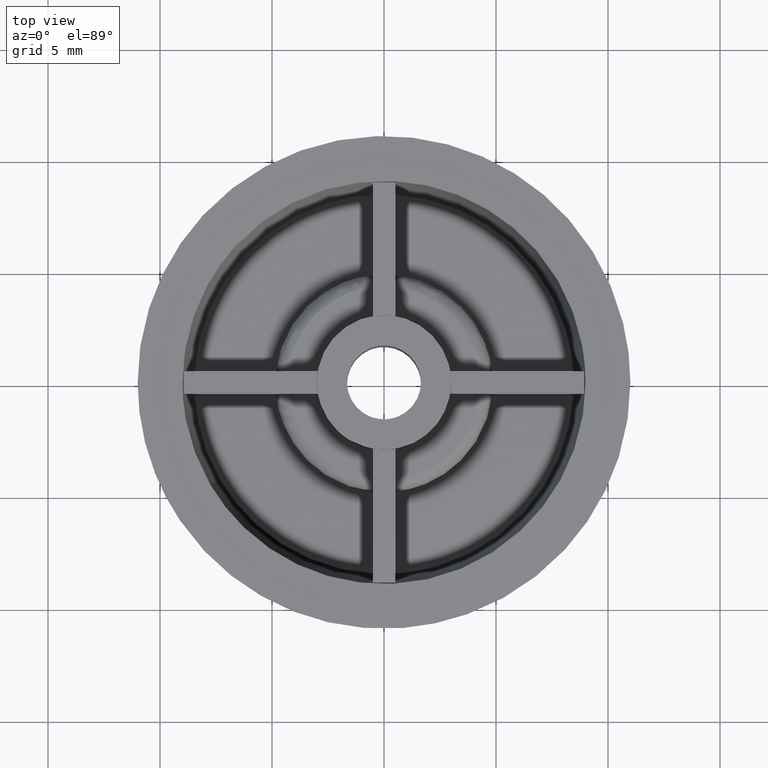
[diagram: clean part render]
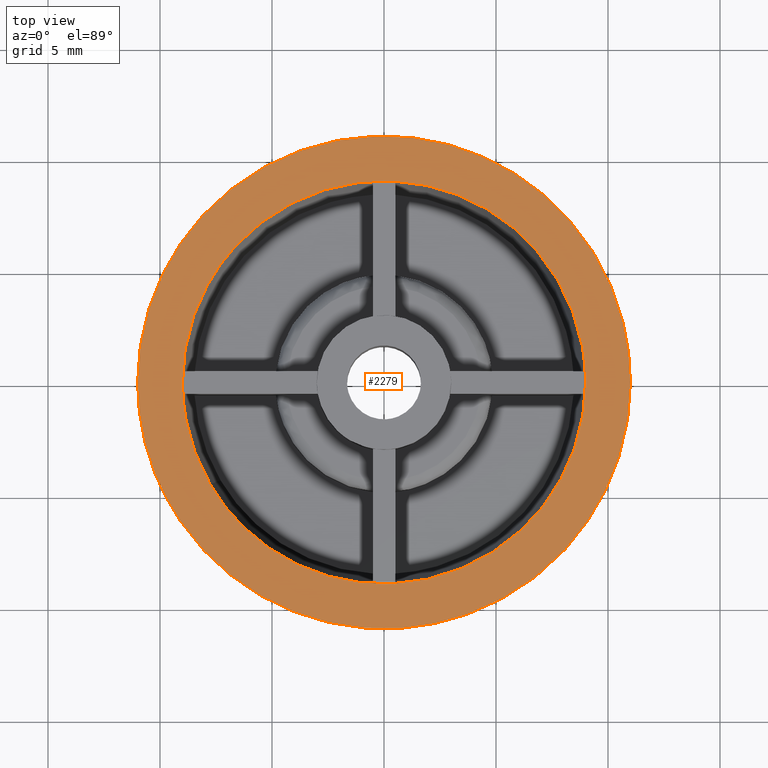
[diagram: same view with one face highlighted and labeled with its STEP entity id]
A machine part, top view. The second image highlights one B-rep face of the part: STEP entity #2279.
In plain terms, the highlighted face is a freeform B-spline surface patch.
Its self-contained STEP definition (entity closure, byte-faithful):
#616=CARTESIAN_POINT('',(0.863043641868048,-10.966090940691020,9.999998009191124));
#617=VERTEX_POINT('',#616);
#618=CARTESIAN_POINT('',(-10.228509833301359,-4.046922405307715,9.999997822664170));
#619=VERTEX_POINT('',#618);
#620=CARTESIAN_POINT('',(0.863043641868048,-10.966090940691020,9.999998009191124));
#621=CARTESIAN_POINT('',(0.432187954316150,-10.999999770209962,9.999998004231291));
#622=CARTESIAN_POINT('',(-4.357194E-009,-10.999999774115951,9.999997998999252));
#623=CARTESIAN_POINT('',(-7.477516348065020,-10.999999841695422,9.999997908476914));
#624=CARTESIAN_POINT('',(-10.228509833301361,-4.046922405307715,9.999997822664168));
#632=(BOUNDED_CURVE()B_SPLINE_CURVE(2,(#620,#621,#622,#623,#624),.UNSPECIFIED.,.F.,.U.)B_SPLINE_CURVE_WITH_KNOTS((3,2,3),(0.736331400565925,0.750000000000000,0.937532606477700),.UNSPECIFIED.)CURVE()GEOMETRIC_REPRESENTATION_ITEM()RATIONAL_B_SPLINE_CURVE((0.969723564724787,0.983986239660329,1.0,0.780291885025080,0.890203253774552))REPRESENTATION_ITEM(''));
#633=EDGE_CURVE('',#617,#619,#632,.T.);
#693=CARTESIAN_POINT('',(-11.0,0.0,10.0));
#694=VERTEX_POINT('',#693);
#695=CARTESIAN_POINT('',(-10.228509833301361,-4.046922405307715,9.999997822664168));
#696=CARTESIAN_POINT('',(-10.999999880903879,-2.096998156951003,9.999998911332085));
#697=CARTESIAN_POINT('',(-11.0,0.0,10.0));
#705=(BOUNDED_CURVE()B_SPLINE_CURVE(2,(#695,#696,#697),.UNSPECIFIED.,.F.,.U.)B_SPLINE_CURVE_WITH_KNOTS((3,3),(0.937532606477700,1.0),.UNSPECIFIED.)CURVE()GEOMETRIC_REPRESENTATION_ITEM()RATIONAL_B_SPLINE_CURVE((0.890203253774552,0.926814896161468,1.0))REPRESENTATION_ITEM(''));
#706=EDGE_CURVE('',#619,#694,#705,.T.);
#708=CARTESIAN_POINT('',(11.0,0.0,10.0));
#709=VERTEX_POINT('',#708);
#710=CARTESIAN_POINT('',(-11.0,0.0,10.0));
#711=CARTESIAN_POINT('',(-11.0,11.0,10.000000000000002));
#712=CARTESIAN_POINT('',(0.0,11.0,10.0));
#713=CARTESIAN_POINT('',(11.0,11.0,10.000000000000002));
#714=CARTESIAN_POINT('',(11.0,0.0,10.0));
#722=(BOUNDED_CURVE()B_SPLINE_CURVE(2,(#710,#711,#712,#713,#714),.UNSPECIFIED.,.F.,.U.)B_SPLINE_CURVE_WITH_KNOTS((3,2,3),(0.0,0.250000000000000,0.500000000000000),.UNSPECIFIED.)CURVE()GEOMETRIC_REPRESENTATION_ITEM()RATIONAL_B_SPLINE_CURVE((1.0,0.707106781186548,1.0,0.707106781186548,1.0))REPRESENTATION_ITEM(''));
#723=EDGE_CURVE('',#694,#709,#722,.T.);
#725=CARTESIAN_POINT('',(11.0,0.0,10.0));
#726=CARTESIAN_POINT('',(10.999999990811927,-10.168301237506476,9.999999004595562));
#727=CARTESIAN_POINT('',(0.863043641868048,-10.966090940691020,9.999998009191124));
#735=(BOUNDED_CURVE()B_SPLINE_CURVE(2,(#725,#726,#727),.UNSPECIFIED.,.F.,.U.)B_SPLINE_CURVE_WITH_KNOTS((3,3),(0.500000000000000,0.736331400565925),.UNSPECIFIED.)CURVE()GEOMETRIC_REPRESENTATION_ITEM()RATIONAL_B_SPLINE_CURVE((1.0,0.723120541526219,0.969723564724787))REPRESENTATION_ITEM(''));
#736=EDGE_CURVE('',#709,#617,#735,.T.);
#1189=CARTESIAN_POINT('',(-7.761535389874816,-4.556156787368412,9.999998243034913));
#1190=VERTEX_POINT('',#1189);
#1196=CARTESIAN_POINT('',(9.0,0.0,10.0));
#1197=VERTEX_POINT('',#1196);
#1198=CARTESIAN_POINT('',(9.0,0.0,10.0));
#1199=CARTESIAN_POINT('',(9.000000024227292,-8.999999985778157,9.999999761208972));
#1200=CARTESIAN_POINT('',(0.000000113356492,-8.999999933457758,9.999998882726429));
#1201=CARTESIAN_POINT('',(-5.152921911512918,-8.999999903501877,9.999998379753977));
#1202=CARTESIAN_POINT('',(-7.761535389874817,-4.556156787368412,9.999998243034913));
#1210=(BOUNDED_CURVE()B_SPLINE_CURVE(2,(#1198,#1199,#1200,#1201,#1202),.UNSPECIFIED.,.F.,.U.)B_SPLINE_CURVE_WITH_KNOTS((3,2,3),(0.500000000000000,0.750000000000000,0.913621874628975),.UNSPECIFIED.)CURVE()GEOMETRIC_REPRESENTATION_ITEM()RATIONAL_B_SPLINE_CURVE((1.0,0.707106781186547,1.0,0.808305049886514,0.867533996528839))REPRESENTATION_ITEM(''));
#1211=EDGE_CURVE('',#1197,#1190,#1210,.T.);
#1213=CARTESIAN_POINT('',(-6.635496134423553,6.080311308922816,9.999997432701306));
#1214=VERTEX_POINT('',#1213);
#1215=CARTESIAN_POINT('',(-6.635496134423553,6.080311308922816,9.999997432701306));
#1216=CARTESIAN_POINT('',(-3.960094862214901,8.999999813405680,9.999997652347489));
#1217=CARTESIAN_POINT('',(0.000000154640398,8.999999858298212,9.999998217166763));
#1218=CARTESIAN_POINT('',(9.000000043298496,8.999999960324249,9.999999500816109));
#1219=CARTESIAN_POINT('',(9.0,0.0,10.0));
#1227=(BOUNDED_CURVE()B_SPLINE_CURVE(2,(#1215,#1216,#1217,#1218,#1219),.UNSPECIFIED.,.F.,.U.)B_SPLINE_CURVE_WITH_KNOTS((3,2,3),(0.118415200994802,0.250000000000000,0.500000000000000),.UNSPECIFIED.)CURVE()GEOMETRIC_REPRESENTATION_ITEM()RATIONAL_B_SPLINE_CURVE((0.853959781836439,0.845838818689785,1.0,0.707106781186547,1.0))REPRESENTATION_ITEM(''));
#1228=EDGE_CURVE('',#1214,#1197,#1227,.T.);
#1482=CARTESIAN_POINT('',(-9.0,0.0,10.0));
#1483=VERTEX_POINT('',#1482);
#1484=CARTESIAN_POINT('',(-9.0,0.0,10.0));
#1485=CARTESIAN_POINT('',(-8.999999888658097,3.499908207050375,9.999998716350653));
#1486=CARTESIAN_POINT('',(-6.635496134423553,6.080311308922816,9.999997432701306));
#1494=(BOUNDED_CURVE()B_SPLINE_CURVE(2,(#1484,#1485,#1486),.UNSPECIFIED.,.F.,.U.)B_SPLINE_CURVE_WITH_KNOTS((3,3),(0.0,0.118415200994802),.UNSPECIFIED.)CURVE()GEOMETRIC_REPRESENTATION_ITEM()RATIONAL_B_SPLINE_CURVE((1.0,0.861267962496762,0.853959781836439))REPRESENTATION_ITEM(''));
#1495=EDGE_CURVE('',#1483,#1214,#1494,.T.);
#1497=CARTESIAN_POINT('',(-7.761535389874817,-4.556156787368412,9.999998243034913));
#1498=CARTESIAN_POINT('',(-8.999999910870800,-2.446399435447403,9.999999121517456));
#1499=CARTESIAN_POINT('',(-9.0,0.0,10.0));
#1507=(BOUNDED_CURVE()B_SPLINE_CURVE(2,(#1497,#1498,#1499),.UNSPECIFIED.,.F.,.U.)B_SPLINE_CURVE_WITH_KNOTS((3,3),(0.913621874628975,1.0),.UNSPECIFIED.)CURVE()GEOMETRIC_REPRESENTATION_ITEM()RATIONAL_B_SPLINE_CURVE((0.867533996528839,0.898801731300034,1.0))REPRESENTATION_ITEM(''));
#1508=EDGE_CURVE('',#1190,#1483,#1507,.T.);
#2262=CARTESIAN_POINT('',(-12.098899957359730,-12.098670719871819,10.0));
#2263=CARTESIAN_POINT('',(12.098900547445711,-12.098670719871819,10.0));
#2264=CARTESIAN_POINT('',(-12.098899957359730,12.098889641771621,10.0));
#2265=CARTESIAN_POINT('',(12.098900547445711,12.098889641771621,10.0));
#2266=B_SPLINE_SURFACE_WITH_KNOTS('',1,1,((#2262,#2264),(#2263,#2265)),.UNSPECIFIED.,.F.,.F.,.U.,(2,2),(2,2),(0.0,24.197800504805439),(0.0,24.197560361643440),.UNSPECIFIED.);
#2267=ORIENTED_EDGE('',*,*,#706,.F.);
#2268=ORIENTED_EDGE('',*,*,#633,.F.);
#2269=ORIENTED_EDGE('',*,*,#736,.F.);
#2270=ORIENTED_EDGE('',*,*,#723,.F.);
#2271=EDGE_LOOP('',(#2267,#2268,#2269,#2270));
#2272=FACE_OUTER_BOUND('',#2271,.T.);
#2273=ORIENTED_EDGE('',*,*,#1495,.T.);
#2274=ORIENTED_EDGE('',*,*,#1228,.T.);
#2275=ORIENTED_EDGE('',*,*,#1211,.T.);
#2276=ORIENTED_EDGE('',*,*,#1508,.T.);
#2277=EDGE_LOOP('',(#2273,#2274,#2275,#2276));
#2278=FACE_BOUND('',#2277,.T.);
#2279=ADVANCED_FACE('',(#2272,#2278),#2266,.T.);